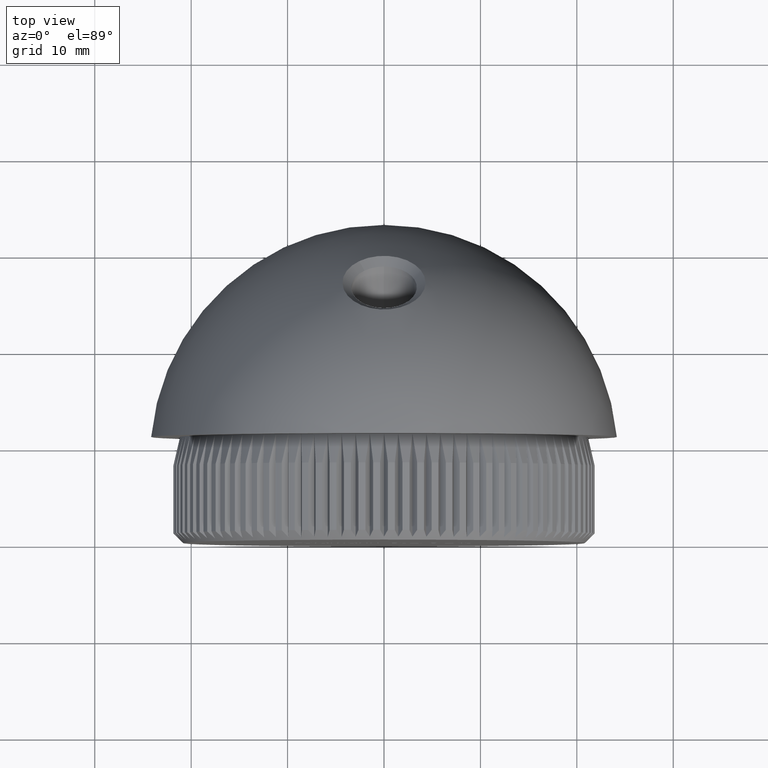
[diagram: clean part render]
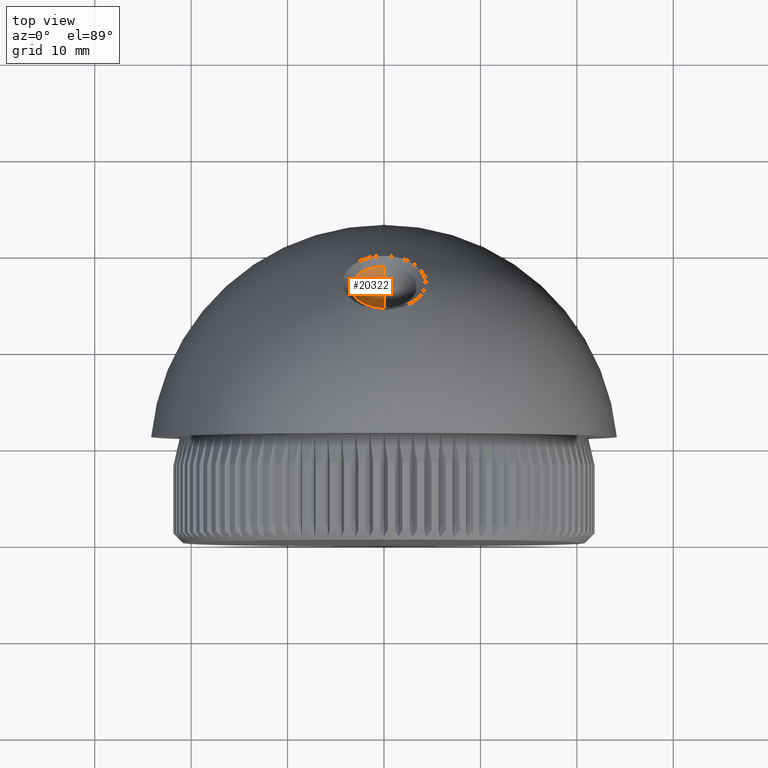
[diagram: same view with one face highlighted and labeled with its STEP entity id]
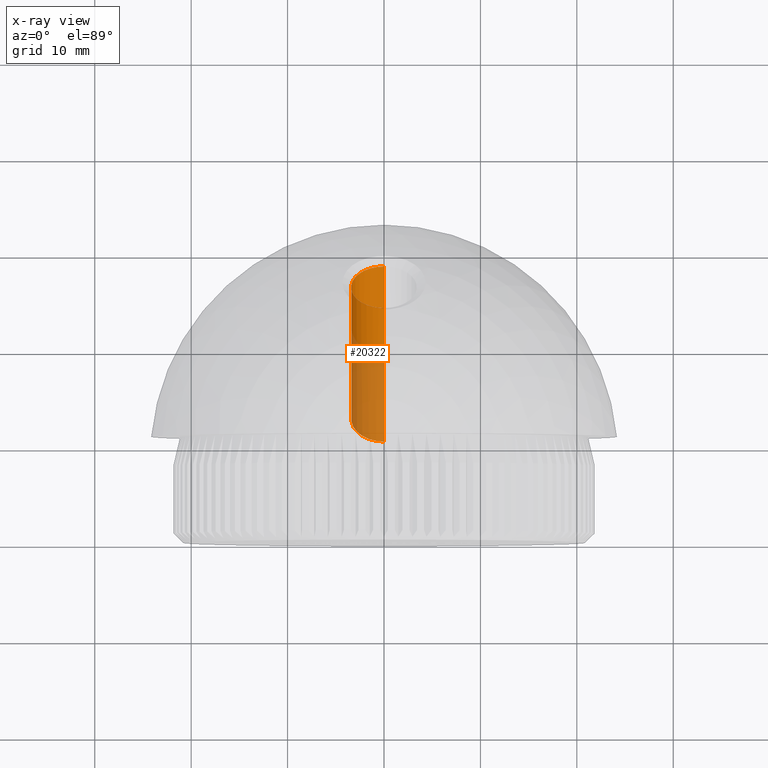
[diagram: x-ray of the same camera — body ghosted, the highlighted face saturated]
A machine part, top view. The second image highlights one B-rep face of the part: STEP entity #20322.
The next image is the same camera in x-ray: the body ghosted, the highlighted face saturated — about 53% of this face is hidden behind the body in this view.
In plain terms, the highlighted cylindrical surface (edge-blend (fillet) strip) has radius 3.4 mm, axis along (-0, 0.7071, 0.7071).
Its self-contained STEP definition (entity closure, byte-faithful):
#44 = CARTESIAN_POINT ( 'NONE',  ( -2.959011558699765800, 27.34763546080903800, 13.97922663120969700 ) ) ;
#1212 = ORIENTED_EDGE ( 'NONE', *, *, #23224, .F. ) ;
#1453 = ORIENTED_EDGE ( 'NONE', *, *, #12935, .T. ) ;
#1495 = EDGE_CURVE ( 'NONE', #6127, #9810, #18765, .T. ) ;
#1610 = CARTESIAN_POINT ( 'NONE',  ( -3.392263308799913000, 26.41344861355449300, 15.08746430728924500 ) ) ;
#1642 = AXIS2_PLACEMENT_3D ( 'NONE', #15021, #7286, #9357 ) ;
#1655 = VECTOR ( 'NONE', #2399, 999.9999999999998900 ) ;
#1690 = CARTESIAN_POINT ( 'NONE',  ( -3.366012116801167000, 26.57458508170767100, 14.89637728684959400 ) ) ;
#1770 = CARTESIAN_POINT ( 'NONE',  ( -3.400788114472157900, 26.24949610035156100, 15.28184774431112200 ) ) ;
#1856 = CARTESIAN_POINT ( 'NONE',  ( -3.362868011953098300, 26.58855381679133600, 14.87981089430866400 ) ) ;
#1945 = CARTESIAN_POINT ( 'NONE',  ( -3.365610374786602000, 26.57641700531828700, 14.89420468243225800 ) ) ;
#2017 = CARTESIAN_POINT ( 'NONE',  ( -2.131137252998105000, 24.54836302958856800, 17.29704827690510200 ) ) ;
#2169 = CARTESIAN_POINT ( 'NONE',  ( 2.580012399387119500E-010, 28.46302475267731000, 12.65469721841554400 ) ) ;
#2399 = DIRECTION ( 'NONE',  ( -0.0000000000000000000, 0.7071067811865489100, 0.7071067811865462400 ) ) ;
#2539 = CARTESIAN_POINT ( 'NONE',  ( 3.064990616329362400E-017, 15.24831129030553400, -0.5600148217630042100 ) ) ;
#2655 = DIRECTION ( 'NONE',  ( -0.0000000000000000000, 0.7071067811865487900, 0.7071067811865462400 ) ) ;
#2827 = CARTESIAN_POINT ( 'NONE',  ( -3.857300055468055500E-016, 26.98628385800225600, 15.98628385800218000 ) ) ;
#3384 = CARTESIAN_POINT ( 'NONE',  ( -0.3623973698595693800, 28.45366397326826700, 12.66583502694737700 ) ) ;
#3508 = CARTESIAN_POINT ( 'NONE',  ( -3.296277773825410800, 25.72491245659481500, 15.90363823673103200 ) ) ;
#3596 = CARTESIAN_POINT ( 'NONE',  ( -3.183538178919068000, 27.03718886127070000, 14.34762577124326900 ) ) ;
#3681 = CARTESIAN_POINT ( 'NONE',  ( -3.290304022657029000, 25.70984546411379100, 15.92149213957758700 ) ) ;
#3766 = CARTESIAN_POINT ( 'NONE',  ( -2.869062407827914100, 27.44596322512464700, 13.86252098112195000 ) ) ;
#4328 = ORIENTED_EDGE ( 'NONE', *, *, #19248, .T. ) ;
#5084 = CARTESIAN_POINT ( 'NONE',  ( -2.150462836275787800, 27.96799188165988800, 13.24272698010137200 ) ) ;
#5316 = CARTESIAN_POINT ( 'NONE',  ( -2.661045783679895700, 27.63433243182412400, 13.63891343749258800 ) ) ;
#5400 = CARTESIAN_POINT ( 'NONE',  ( -3.114154015948717500, 25.38071733789482900, 16.31143472791008600 ) ) ;
#5486 = CARTESIAN_POINT ( 'NONE',  ( -3.365774954557506400, 25.94787665065324200, 15.63941143450383800 ) ) ;
#5563 = CARTESIAN_POINT ( 'NONE',  ( -3.298535112540707600, 25.73074423829808300, 15.89672759513301200 ) ) ;
#5638 = CARTESIAN_POINT ( 'NONE',  ( -2.331523948955667600, 24.66213361488819800, 17.16237584357453400 ) ) ;
#5723 = CARTESIAN_POINT ( 'NONE',  ( -1.845087302737511000, 24.41468634521473300, 17.45526671535421700 ) ) ;
#6127 = VERTEX_POINT ( 'NONE', #2169 ) ;
#6305 = FACE_OUTER_BOUND ( 'NONE', #17233, .T. ) ;
#6894 = CARTESIAN_POINT ( 'NONE',  ( -2.490533700773000200, 27.76166487596051300, 13.48773177707876900 ) ) ;
#7166 = CARTESIAN_POINT ( 'NONE',  ( -0.7204816076509351600, 28.41391974990795100, 12.71303092278218300 ) ) ;
#7209 = CARTESIAN_POINT ( 'NONE',  ( -3.114976093834011600, 27.14784193481218100, 14.21633618137167700 ) ) ;
#7286 = DIRECTION ( 'NONE',  ( -0.0000000000000000000, 0.7071067811865487900, 0.7071067811865462400 ) ) ;
#7292 = CARTESIAN_POINT ( 'NONE',  ( -3.238224129636582600, 25.59299647916504500, 16.05994144369461200 ) ) ;
#7375 = CARTESIAN_POINT ( 'NONE',  ( -2.362891276603803300, 24.68150748931216800, 17.13944033363224400 ) ) ;
#7462 = CARTESIAN_POINT ( 'NONE',  ( -3.367909023465188500, 26.56588860216859900, 14.90669103317525800 ) ) ;
#7554 = CARTESIAN_POINT ( 'NONE',  ( -2.268136455739178100, 24.62443338347613800, 17.20700474283250600 ) ) ;
#7868 = CARTESIAN_POINT ( 'NONE',  ( -1.616019167077552800, 24.32683483385292400, 17.55923261323483000 ) ) ;
#7888 = VERTEX_POINT ( 'NONE', #7928 ) ;
#7928 = CARTESIAN_POINT ( 'NONE',  ( -3.857300055468055500E-016, 10.43998517823702700, 4.248311290305513100 ) ) ;
#8116 = DIRECTION ( 'NONE',  ( -0.0000000000000000000, 0.7071067811865489100, 0.7071067811865462400 ) ) ;
#8710 = CARTESIAN_POINT ( 'NONE',  ( -2.049219170085649900, 28.01906012747891600, 13.18207547491371700 ) ) ;
#9108 = CARTESIAN_POINT ( 'NONE',  ( -3.375365728689601500, 26.52897490845321500, 14.95046922597673400 ) ) ;
#9193 = CARTESIAN_POINT ( 'NONE',  ( -3.062682439067877300, 25.30833363547344200, 16.39717962821015400 ) ) ;
#9281 = CARTESIAN_POINT ( 'NONE',  ( -2.989712905261168600, 27.31231136240888100, 14.02115283568716800 ) ) ;
#9357 = DIRECTION ( 'NONE',  ( 0.0000000000000000000, -0.7071067811865464600, 0.7071067811865486800 ) ) ;
#9363 = CARTESIAN_POINT ( 'NONE',  ( -3.258926474120860100, 25.63576161764380500, 16.00927379198032300 ) ) ;
#9443 = CARTESIAN_POINT ( 'NONE',  ( -2.928652143029425200, 27.38163311452422000, 13.93887463239463600 ) ) ;
#9570 = CYLINDRICAL_SURFACE ( 'NONE', #21886, 3.399999999999992400 ) ;
#9615 = CARTESIAN_POINT ( 'NONE',  ( -1.374928682614645400, 24.24777268373593100, 17.65277548441756000 ) ) ;
#9810 = VERTEX_POINT ( 'NONE', #14694 ) ;
#10340 = EDGE_CURVE ( 'NONE', #7888, #14882, #23615, .T. ) ;
#10677 = CIRCLE ( 'NONE', #1642, 3.399999999999995500 ) ;
#10695 = CARTESIAN_POINT ( 'NONE',  ( -2.577974354057884100, 27.69840874344967200, 13.56283662197634000 ) ) ;
#10734 = CARTESIAN_POINT ( 'NONE',  ( -0.9797249401577102800, 28.37059433694224000, 12.76450704143191200 ) ) ;
#11026 = CARTESIAN_POINT ( 'NONE',  ( -3.396615654860013900, 26.36385476866276500, 15.14626888077593700 ) ) ;
#11104 = CARTESIAN_POINT ( 'NONE',  ( -2.633106676337136200, 24.87166879308644200, 16.91430526233236300 ) ) ;
#11189 = CARTESIAN_POINT ( 'NONE',  ( -3.398462370662577400, 26.19220258672283600, 15.34977196447599600 ) ) ;
#11267 = CARTESIAN_POINT ( 'NONE',  ( -3.041314352606432800, 25.28007266483891200, 16.43065378416038800 ) ) ;
#11353 = CARTESIAN_POINT ( 'NONE',  ( -3.213267837454644800, 26.98333265605224100, 14.41152356999912600 ) ) ;
#11682 = CARTESIAN_POINT ( 'NONE',  ( -1.209157442349075400, 24.20382282795913300, 17.70476911949515800 ) ) ;
#12727 = CARTESIAN_POINT ( 'NONE',  ( 2.580012399387119500E-010, 28.46302475267731000, 12.65469721841554400 ) ) ;
#12935 = EDGE_CURVE ( 'NONE', #19120, #6127, #14395, .T. ) ;
#12938 = CARTESIAN_POINT ( 'NONE',  ( -3.363791917857531700, 26.58451760521516500, 14.88459767411398700 ) ) ;
#13020 = CARTESIAN_POINT ( 'NONE',  ( -2.546613387423729800, 24.80406916286463200, 16.99434122782558300 ) ) ;
#13104 = CARTESIAN_POINT ( 'NONE',  ( -3.319285470951367500, 25.78512957850470100, 15.83228082464409200 ) ) ;
#13114 = ORIENTED_EDGE ( 'NONE', *, *, #10340, .F. ) ;
#13188 = CARTESIAN_POINT ( 'NONE',  ( -2.842555708456466300, 25.05196807848240300, 16.70081259891642800 ) ) ;
#13271 = CARTESIAN_POINT ( 'NONE',  ( -3.287389879105840200, 26.83536527009115200, 14.58708309001621300 ) ) ;
#13432 = CARTESIAN_POINT ( 'NONE',  ( -0.1759794810803171300, 24.06304477208154700, 17.87137088414997900 ) ) ;
#13596 = CARTESIAN_POINT ( 'NONE',  ( -0.7010043735220218300, 24.10742509536251500, 17.81885805102201200 ) ) ;
#13676 = CARTESIAN_POINT ( 'NONE',  ( -0.8721933326148363400, 24.13365008163982100, 17.78780935492996900 ) ) ;
#13811 = CARTESIAN_POINT ( 'NONE',  ( -9.950276190569265100E-013, 24.06304387506123300, 17.87137178118357300 ) ) ;
#14395 = LINE ( 'NONE', #17633, #1655 ) ;
#14667 = ORIENTED_EDGE ( 'NONE', *, *, #1495, .T. ) ;
#14694 = CARTESIAN_POINT ( 'NONE',  ( -2.030845928767440500, 28.02790597852343500, 13.17156968260500900 ) ) ;
#14750 = CARTESIAN_POINT ( 'NONE',  ( -0.1810580661247848400, 28.46303385509502700, 12.65470774300718800 ) ) ;
#14873 = CARTESIAN_POINT ( 'NONE',  ( -3.390679691628283100, 26.10072441360477000, 15.45823848259610300 ) ) ;
#14882 = VERTEX_POINT ( 'NONE', #13811 ) ;
#14947 = CARTESIAN_POINT ( 'NONE',  ( -3.399653721498293400, 26.30680632060649400, 15.21390730968474600 ) ) ;
#15021 = CARTESIAN_POINT ( 'NONE',  ( -3.857300055468055500E-016, 12.84414823427127800, 1.844148234271255400 ) ) ;
#15030 = CARTESIAN_POINT ( 'NONE',  ( -3.331905834430120400, 26.72128273835981500, 14.72240020856911600 ) ) ;
#15106 = CARTESIAN_POINT ( 'NONE',  ( -3.194967766546815000, 25.50944032190167500, 16.15893605314016700 ) ) ;
#15188 = CARTESIAN_POINT ( 'NONE',  ( -3.077902733246908400, 27.20042178808665100, 14.15394321995280300 ) ) ;
#15431 = CARTESIAN_POINT ( 'NONE',  ( -3.857300055468055500E-016, 24.58212080196800600, 18.39044691403644200 ) ) ;
#16425 = CARTESIAN_POINT ( 'NONE',  ( -2.099550025499004500, 27.99399774784597400, 13.21184107949152600 ) ) ;
#16474 = DIRECTION ( 'NONE',  ( 0.0000000000000000000, -0.7071067811865460200, 0.7071067811865490200 ) ) ;
#16537 = CARTESIAN_POINT ( 'NONE',  ( -2.030845928767440500, 28.02790597852343500, 13.17156968260500900 ) ) ;
#16659 = CARTESIAN_POINT ( 'NONE',  ( -3.225834758618351100, 26.95938833014092500, 14.43993302852150000 ) ) ;
#16745 = CARTESIAN_POINT ( 'NONE',  ( -3.281194052658034500, 25.68736567597163400, 15.94812938237498800 ) ) ;
#16831 = CARTESIAN_POINT ( 'NONE',  ( -3.166863580926937900, 27.06530932361750900, 14.31426198814382600 ) ) ;
#16912 = CARTESIAN_POINT ( 'NONE',  ( -3.393880118373373600, 26.39729647888398400, 15.10661638581323300 ) ) ;
#17004 = CARTESIAN_POINT ( 'NONE',  ( -2.718292237701084100, 24.94209384027690700, 16.83091947904553000 ) ) ;
#17056 = B_SPLINE_CURVE_WITH_KNOTS ( 'NONE', 3,
 ( #22292, #8710, #21965, #16425, #5084, #23859, #20227, #18254, #6894, #22046, #10695, #5316, #22706, #3766, #9443, #18654, #44, #9281, #22534, #15188, #7209, #16831, #3596, #18822, #11353, #16659, #20464, #13271, #15030, #1856, #12938, #1945, #1690, #7462, #20627, #9108, #20710, #22377, #1610, #16912, #11026, #18575, #14947, #1770, #11189, #24254, #18906, #14873, #24426, #5486, #24341, #13104, #5563, #3508, #3681, #16745, #9363, #7292, #15106, #22625, #5400, #20549, #9193, #11267, #24504, #13188, #17004, #22452, #11104, #13020, #18736, #7375, #5638, #7554, #20794, #2017, #17163, #5723, #22781, #7868, #9615, #11682, #13676, #13596, #23102, #13432, #17251 ),
 .UNSPECIFIED., .F., .F.,
 ( 4, 2, 1, 1, 2, 2, 2, 1, 2, 2, 1, 2, 2, 2, 2, 2, 2, 2, 2, 1, 2, 2, 2, 2, 1, 2, 2, 1, 2, 2, 2, 1, 1, 2, 2, 2, 2, 2, 2, 1, 2, 2, 2, 1, 2, 2, 2, 2, 4 ),
 ( 0.9997174810363652600, 1.002829083719765800, 1.005940686403166400, 1.012163891769967600, 1.024610302503569800, 1.030833507870370800, 1.037056713237171700, 1.049503123970773900, 1.061949534704376100, 1.065061137387776700, 1.068172740071177400, 1.074395945437978100, 1.086842356171579600, 1.093065561538380400, 1.096177164221781000, 1.099288766905181600, 1.124181588372385800, 1.124959489043235900, 1.125737389714086100, 1.127293191055786400, 1.130404793739187500, 1.136627999105989600, 1.139739601789390400, 1.142851204472791400, 1.149074409839593500, 1.155297615206395600, 1.158409217889796400, 1.161520820573197300, 1.173967231306800400, 1.186413642040403400, 1.187969443382104200, 1.189525244723805200, 1.192636847407206700, 1.198860052774009900, 1.211306463507616700, 1.217529668874420400, 1.223752874241223800, 1.248645695708438000, 1.254868901075241400, 1.261092106442044800, 1.273538517175651700, 1.279761722542455100, 1.285984927909258600, 1.298431338642865200, 1.310877749376471800, 1.323324160110078500, 1.348216981577292000, 1.373109803044505500, 1.398002624511718700 ),
 .UNSPECIFIED. ) ;
#17163 = CARTESIAN_POINT ( 'NONE',  ( -1.990804138942291500, 24.47730074947827500, 17.38115784708548600 ) ) ;
#17233 = EDGE_LOOP ( 'NONE', ( #1212, #1453, #14667, #4328, #13114 ) ) ;
#17251 = CARTESIAN_POINT ( 'NONE',  ( -9.950276190569265100E-013, 24.06304387506123300, 17.87137178118357300 ) ) ;
#17633 = CARTESIAN_POINT ( 'NONE',  ( 3.064990616329362400E-017, 29.39044691403650600, 13.58212080196791900 ) ) ;
#18254 = CARTESIAN_POINT ( 'NONE',  ( -2.459458784188266000, 27.78298599391540300, 13.46241672082306100 ) ) ;
#18290 = CARTESIAN_POINT ( 'NONE',  ( -1.730571905589954900, 28.17247384182362400, 12.99987349079738600 ) ) ;
#18536 = CARTESIAN_POINT ( 'NONE',  ( -0.6313436128328996400, 28.42560342959539500, 12.69915625262215500 ) ) ;
#18575 = CARTESIAN_POINT ( 'NONE',  ( -3.397506024596457700, 26.34975940836582000, 15.16298174570866300 ) ) ;
#18654 = CARTESIAN_POINT ( 'NONE',  ( -2.938373929784697100, 27.37088402047914200, 13.95163279526812200 ) ) ;
#18736 = CARTESIAN_POINT ( 'NONE',  ( -2.455872308495011600, 24.74120801824140200, 17.06876299336199300 ) ) ;
#18765 = B_SPLINE_CURVE_WITH_KNOTS ( 'NONE', 3,
 ( #12727, #14750, #3384, #18536, #7166, #22167, #10734, #20179, #18290, #16537 ),
 .UNSPECIFIED., .F., .F.,
 ( 4, 2, 2, 2, 4 ),
 ( 0.8980115892242378500, 0.9234380621772696500, 0.9361512986537855500, 0.9488645351303015600, 0.9997174810363652600 ),
 .UNSPECIFIED. ) ;
#18822 = CARTESIAN_POINT ( 'NONE',  ( -3.207487108334270000, 26.99410288545869500, 14.39874511152444800 ) ) ;
#18906 = CARTESIAN_POINT ( 'NONE',  ( -3.394011176020909700, 26.13279502469807600, 15.42021479795317000 ) ) ;
#19120 = VERTEX_POINT ( 'NONE', #2539 ) ;
#19248 = EDGE_CURVE ( 'NONE', #9810, #14882, #17056, .T. ) ;
#20179 = CARTESIAN_POINT ( 'NONE',  ( -1.401304649114057100, 28.28082615037616400, 12.87119079013762700 ) ) ;
#20227 = CARTESIAN_POINT ( 'NONE',  ( -2.364890679085129800, 27.84535541550437900, 13.38836171713896500 ) ) ;
#20322 = ADVANCED_FACE ( 'NONE', ( #6305 ), #9570, .F. ) ;
#20464 = CARTESIAN_POINT ( 'NONE',  ( -3.232058689847843200, 26.94719052229969200, 14.45440557837298800 ) ) ;
#20549 = CARTESIAN_POINT ( 'NONE',  ( -3.097222786034284700, 25.35615576267021300, 16.34053149671399300 ) ) ;
#20627 = CARTESIAN_POINT ( 'NONE',  ( -3.371686001482357300, 26.54807064753698100, 14.92782260776801500 ) ) ;
#20710 = CARTESIAN_POINT ( 'NONE',  ( -3.382459423986477800, 26.48907425869979400, 14.99778797953180400 ) ) ;
#20794 = CARTESIAN_POINT ( 'NONE',  ( -2.233866467169156600, 24.60480870950997800, 17.23023481965678300 ) ) ;
#21886 = AXIS2_PLACEMENT_3D ( 'NONE', #2827, #2655, #16474 ) ;
#21965 = CARTESIAN_POINT ( 'NONE',  ( -2.065464714280496500, 28.01107137899662200, 13.19156346419292600 ) ) ;
#22046 = CARTESIAN_POINT ( 'NONE',  ( -2.551690722806525100, 27.71796556492129000, 13.53961645325786000 ) ) ;
#22167 = CARTESIAN_POINT ( 'NONE',  ( -0.8971568140892993700, 28.38595087231768600, 12.74625664092822500 ) ) ;
#22292 = CARTESIAN_POINT ( 'NONE',  ( -2.030845928767440500, 28.02790597852343500, 13.17156968260500900 ) ) ;
#22377 = CARTESIAN_POINT ( 'NONE',  ( -3.386838249747961900, 26.46019371081394700, 15.03203572402110300 ) ) ;
#22452 = CARTESIAN_POINT ( 'NONE',  ( -2.689721538128432100, 24.91778079434353200, 16.85970776770364000 ) ) ;
#22534 = CARTESIAN_POINT ( 'NONE',  ( -3.019564927095046900, 27.27562501484028000, 14.06469386434342900 ) ) ;
#22625 = CARTESIAN_POINT ( 'NONE',  ( -3.163665524938154200, 25.45637237124024600, 16.22180753953791300 ) ) ;
#22706 = CARTESIAN_POINT ( 'NONE',  ( -2.768894218025817800, 27.54454053935391400, 13.74551525012241600 ) ) ;
#22781 = CARTESIAN_POINT ( 'NONE',  ( -1.697319527387032100, 24.35627720240689000, 17.52439390913479000 ) ) ;
#23102 = CARTESIAN_POINT ( 'NONE',  ( -0.3576372746460695900, 24.07237290086477100, 17.86033759566315000 ) ) ;
#23224 = EDGE_CURVE ( 'NONE', #19120, #7888, #10677, .T. ) ;
#23615 = LINE ( 'NONE', #15431, #23910 ) ;
#23859 = CARTESIAN_POINT ( 'NONE',  ( -2.267637668588916400, 27.90453443298460100, 13.31808958317825800 ) ) ;
#23910 = VECTOR ( 'NONE', #8116, 999.9999999999998900 ) ;
#24254 = CARTESIAN_POINT ( 'NONE',  ( -3.395421842446344000, 26.14927454583770900, 15.40067321982502200 ) ) ;
#24341 = CARTESIAN_POINT ( 'NONE',  ( -3.336401634764757200, 25.83701276604715200, 15.77079577606959000 ) ) ;
#24426 = CARTESIAN_POINT ( 'NONE',  ( -3.381095230988779400, 26.02160557936841900, 15.55203426087914000 ) ) ;
#24504 = CARTESIAN_POINT ( 'NONE',  ( -2.936281658932006900, 25.14853136848345700, 16.58645306025162800 ) ) ;